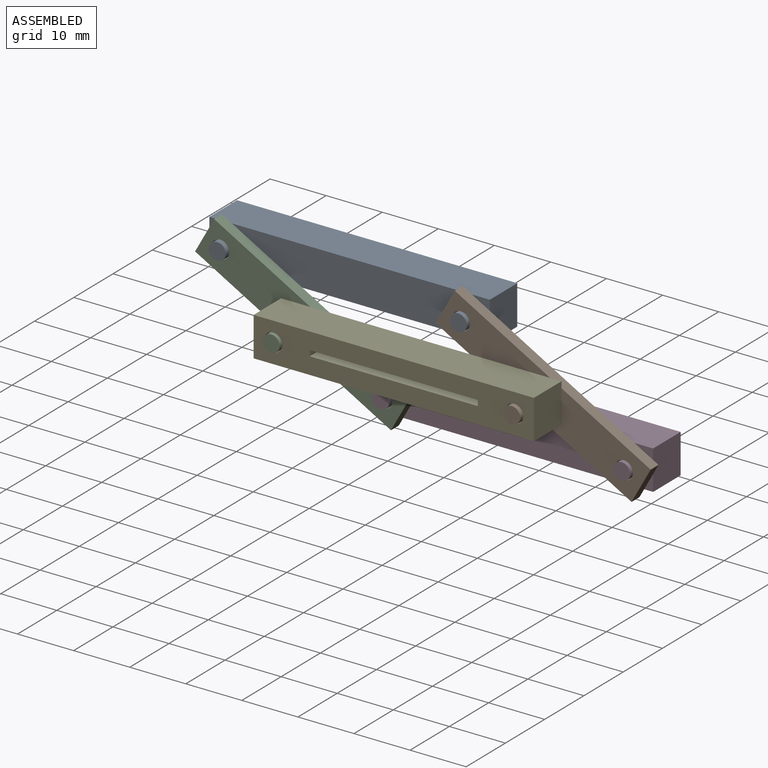
[diagram: assembled view]
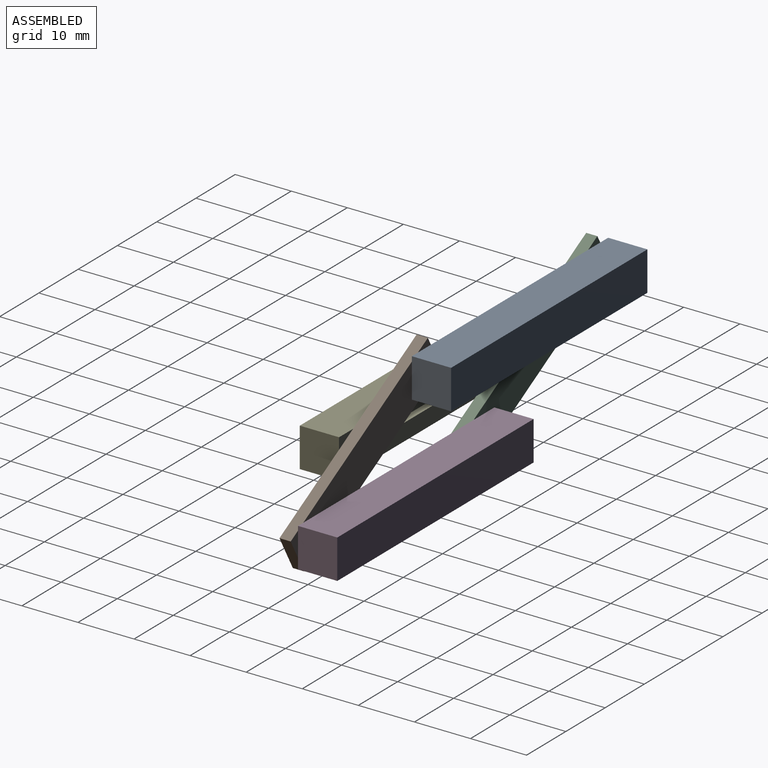
[diagram: assembled view, second angle]
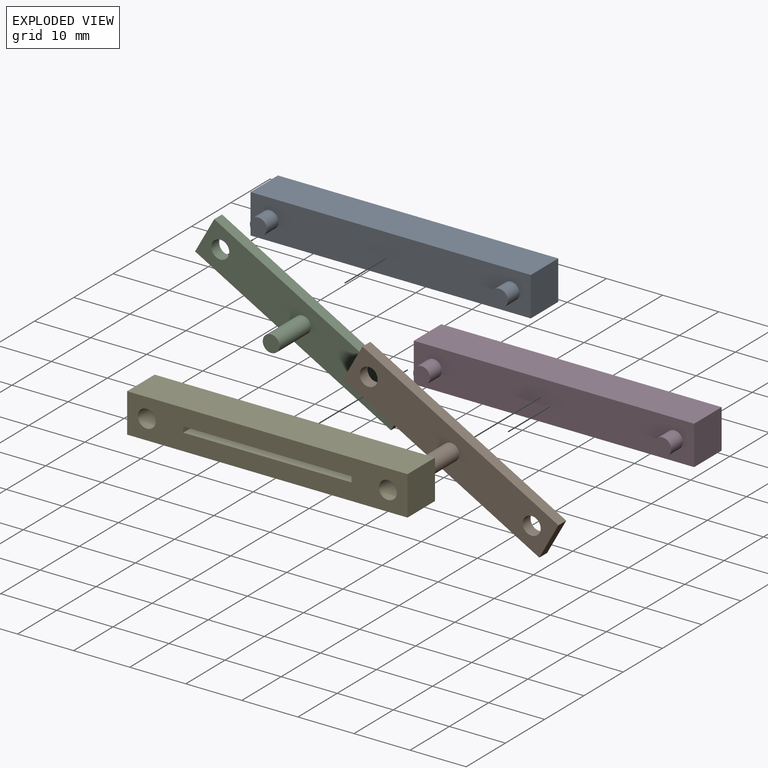
[diagram: exploded view]
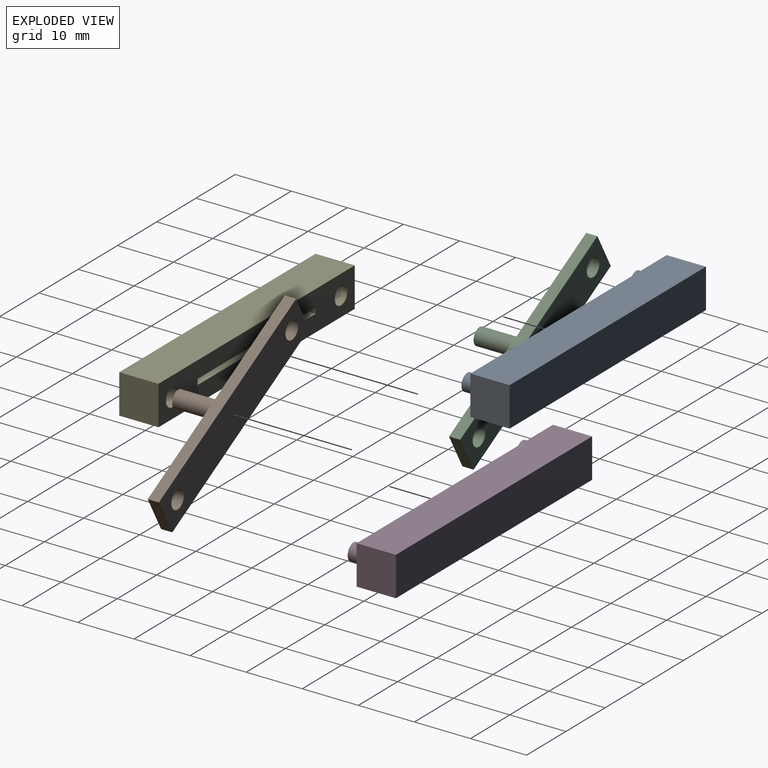
[diagram: exploded view, second angle]
ASSEMBLY  parts=5 mates=5
PART A: 10 faces, bbox 50x10x7 mm
  f0: plane 50x7mm, normal (0,0,1), area 350mm2, adj f1,f3,f4,f7
  f1: plane 7x7mm, normal (-1,0,0), area 49mm2, adj f0,f2,f4,f7
  f2: plane 50x7mm, normal (0,0,-1), area 350mm2, adj f1,f3,f4,f7
  f3: plane 7x7mm, normal (1,0,0), area 49mm2, adj f0,f2,f4,f7
  f4: plane 50x7mm, normal (0,1,0), area 350mm2, adj f0,f1,f2,f3
  f5: cylinder r=1.5mm len=3mm, axis (0,-1,0), area 28.3mm2, adj f7,f8
  f6: cylinder r=1.5mm len=3mm, axis (0,-1,0), area 28.3mm2, adj f7,f9
  f7: plane 50x7mm, normal (0,-1,0), area 335.9mm2, adj f0,f1,f2,f3,f5,f6
  f8: plane 3x3mm, normal (0,-1,0), area 7.1mm2, adj f5
  f9: plane 3x3mm, normal (0,-1,0), area 7.1mm2, adj f6
PART B: 10 faces, bbox 40x10x7 mm
  f0: plane 40x2mm, normal (0,0,1), area 80mm2, adj f1,f3,f6,f8
  f1: plane 7x2mm, normal (-1,0,0), area 14mm2, adj f0,f2,f6,f8
  f2: plane 40x2mm, normal (0,0,-1), area 80mm2, adj f1,f3,f6,f8
  f3: plane 7x2mm, normal (1,0,0), area 14mm2, adj f0,f2,f6,f8
  f4: cylinder r=1.6mm len=3.2mm, axis (0,1,0), area 20.1mm2, adj f6,f8
  f5: cylinder r=1.6mm len=3.2mm, axis (0,1,0), area 20.1mm2, adj f6,f8
  f6: plane 40x7mm, normal (0,1,0), area 263.9mm2, adj f0,f1,f2,f3,f4,f5
  f7: cylinder r=1.5mm len=8mm, axis (0,-1,0), area 75.4mm2, adj f8,f9
  f8: plane 40x7mm, normal (0,-1,0), area 256.8mm2, adj f0,f1,f2,f3,f4,f5,f7
  f9: plane 3x3mm, normal (0,-1,0), area 7.1mm2, adj f7
PART C: same geometry as B
PART D: same geometry as A
PART E: 12 faces, bbox 50x7x7 mm
  f0: plane 7x1mm, normal (1,0,0), area 7mm2, adj f1,f7,f10,f11
  f1: plane 30x7mm, normal (0,0,-1), area 210mm2, adj f0,f2,f10,f11
  f2: plane 7x1mm, normal (-1,0,0), area 7mm2, adj f1,f7,f10,f11
  f3: plane 50x7mm, normal (0,0,1), area 350mm2, adj f4,f8,f10,f11
  f4: plane 7x7mm, normal (-1,0,0), area 49mm2, adj f3,f5,f10,f11
  f5: plane 50x7mm, normal (0,0,-1), area 350mm2, adj f4,f8,f10,f11
  f6: cylinder r=1.6mm len=7mm, axis (0,1,0), area 70.4mm2, adj f10,f11
  f7: plane 30x7mm, normal (0,0,1), area 210mm2, adj f0,f2,f10,f11
  f8: plane 7x7mm, normal (1,0,0), area 49mm2, adj f3,f5,f10,f11
  f9: cylinder r=1.6mm len=7mm, axis (0,1,0), area 70.4mm2, adj f10,f11
  f10: plane 50x7mm, normal (0,-1,0), area 303.9mm2, adj f0,f1,f2,f3,f4,f5,f6,f7
  f11: plane 50x7mm, normal (0,1,0), area 303.9mm2, adj f0,f1,f2,f3,f4,f5,f6,f7
PLACE A t=(-28.03,5.91,9.38)mm
PLACE B rot(axis=(0,-1,0),150.8deg) t=(48.9,-1.45,-15.1)mm
PLACE C rot(axis=(0,-1,0),150.8deg) t=(5.9,-1.32,-15.1)mm
PLACE D t=(1.05,5.98,-6.84)mm
PLACE E t=(11.64,-3.8,-2.3)mm
MATE cylindrical A.f6 <-> C.f5  axis (0,-1,0) through (-24.53,-1.09,5.88)mm
MATE cylindrical B.f7 <-> E.f9  axis (0,-1,0) through (33.14,-3.45,-2.3)mm
MATE cylindrical C.f7 <-> E.f6  axis (0,-1,0) through (-9.86,-3.32,-2.3)mm
MATE cylindrical A.f5 <-> B.f5  axis (0,-1,0) through (18.47,-1.09,5.88)mm
MATE cylindrical C.f4 <-> D.f6  axis (0,-1,0) through (4.55,-3.32,-10.34)mm
